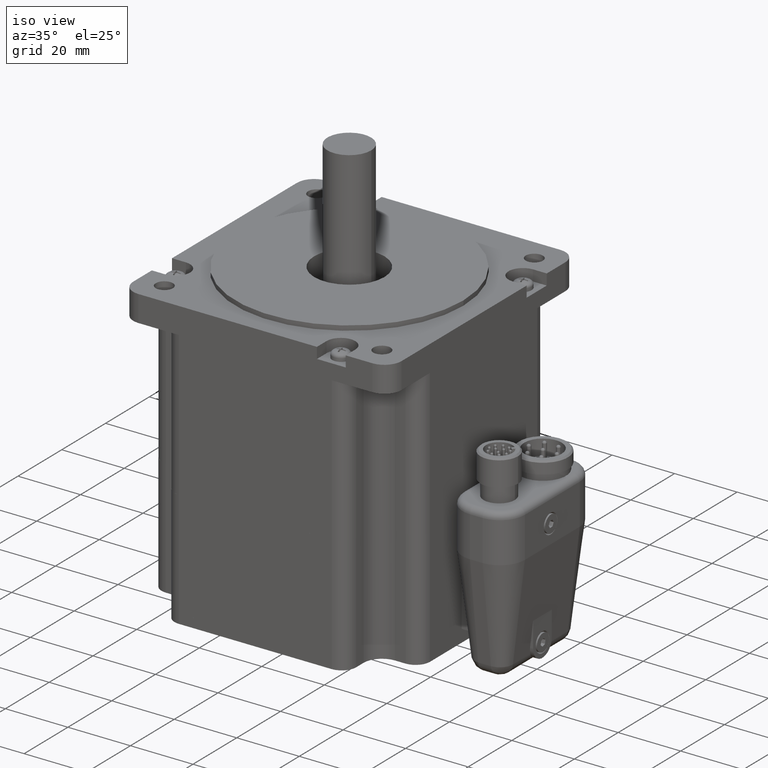
[diagram: clean part render]
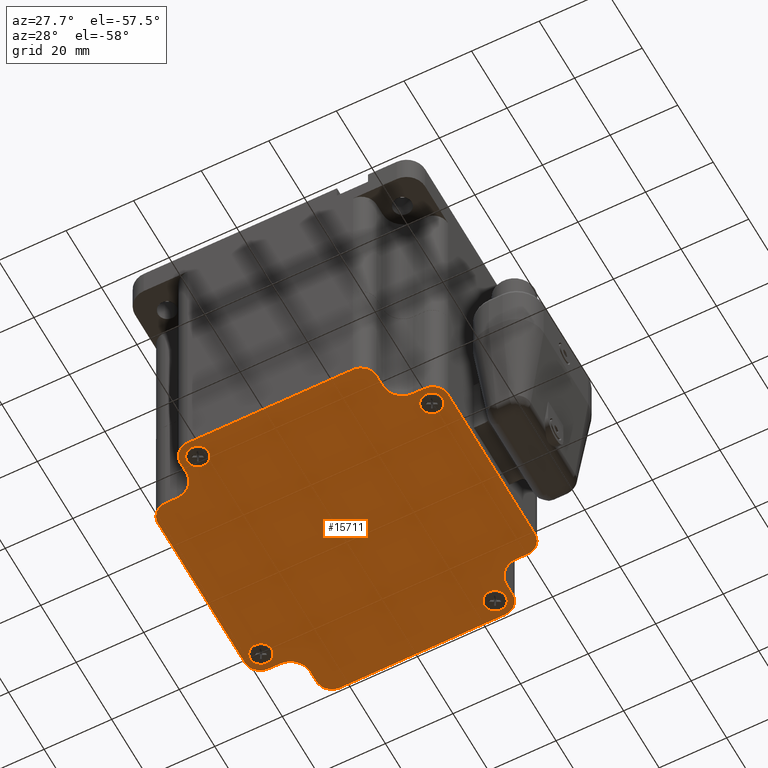
[diagram: tour spotlight — one face highlighted and labeled with its STEP entity id]
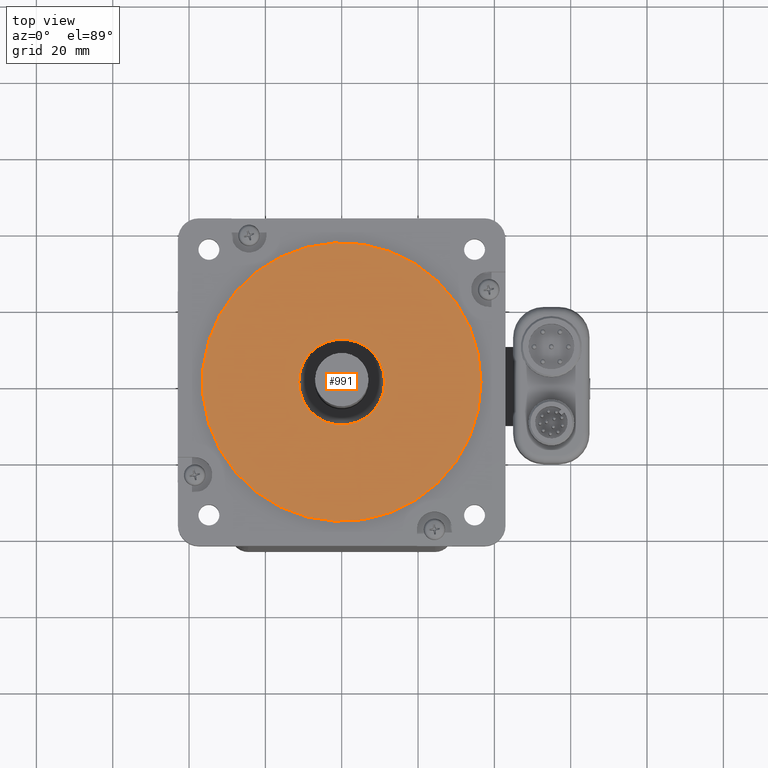
[diagram: tour spotlight — one face highlighted and labeled with its STEP entity id]
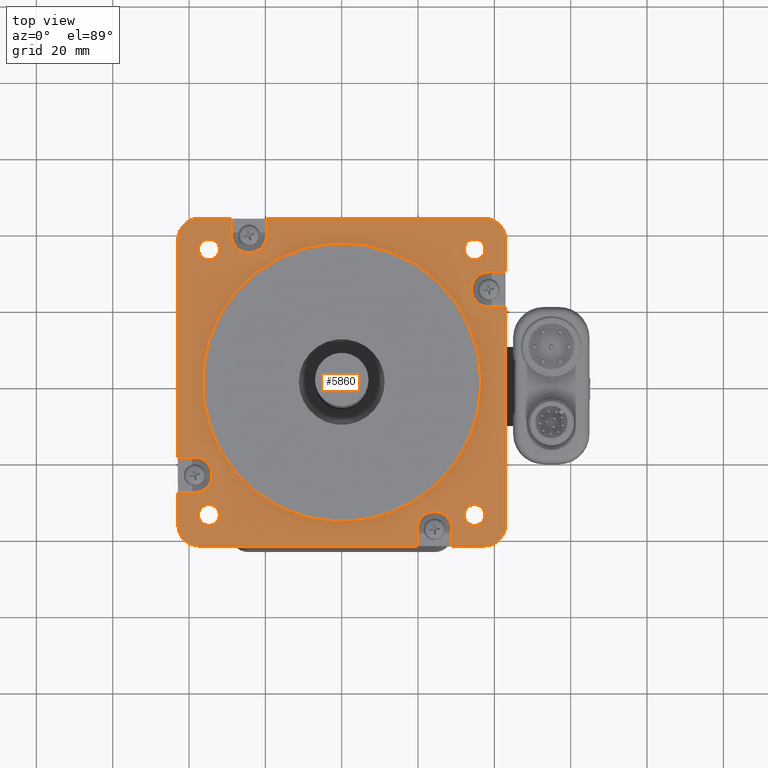
[diagram: tour spotlight — one face highlighted and labeled with its STEP entity id]
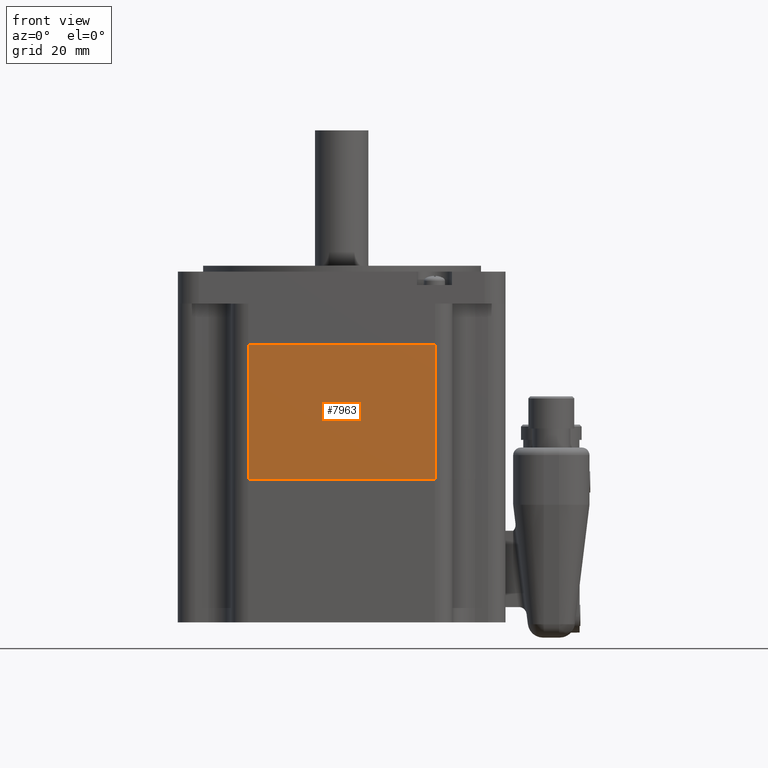
[diagram: tour spotlight — one face highlighted and labeled with its STEP entity id]
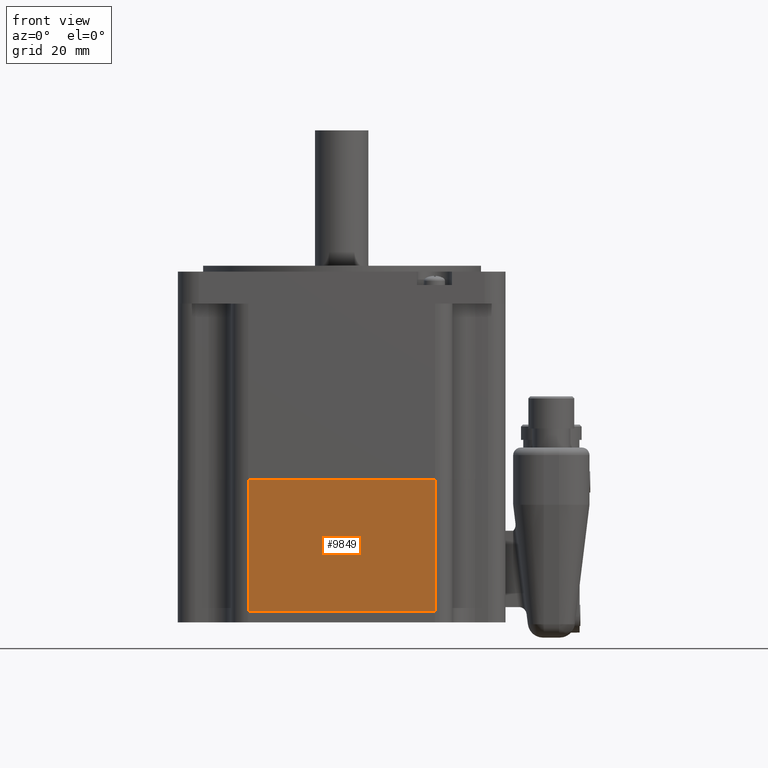
[diagram: tour spotlight — one face highlighted and labeled with its STEP entity id]
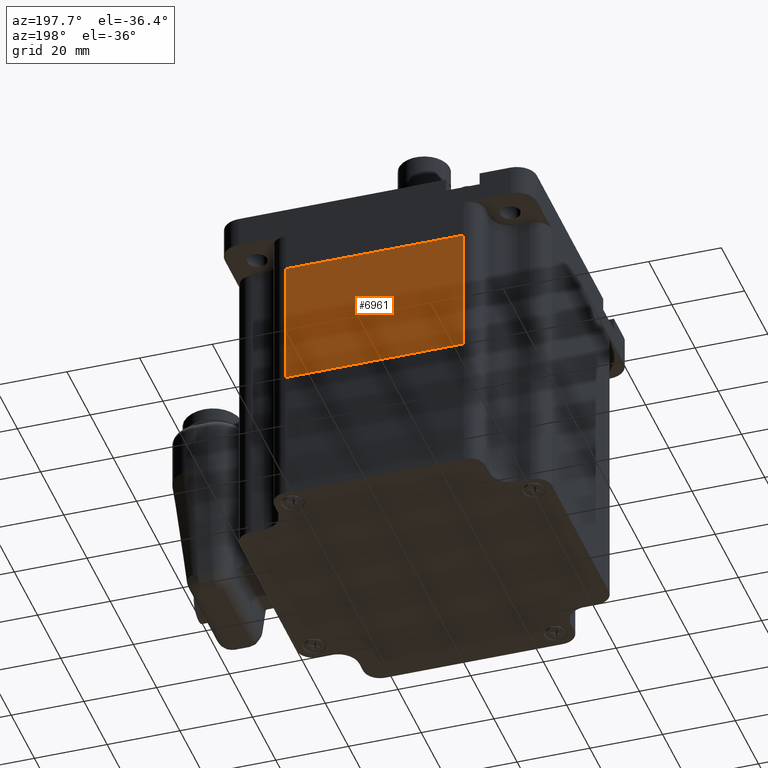
[diagram: tour spotlight — one face highlighted and labeled with its STEP entity id]
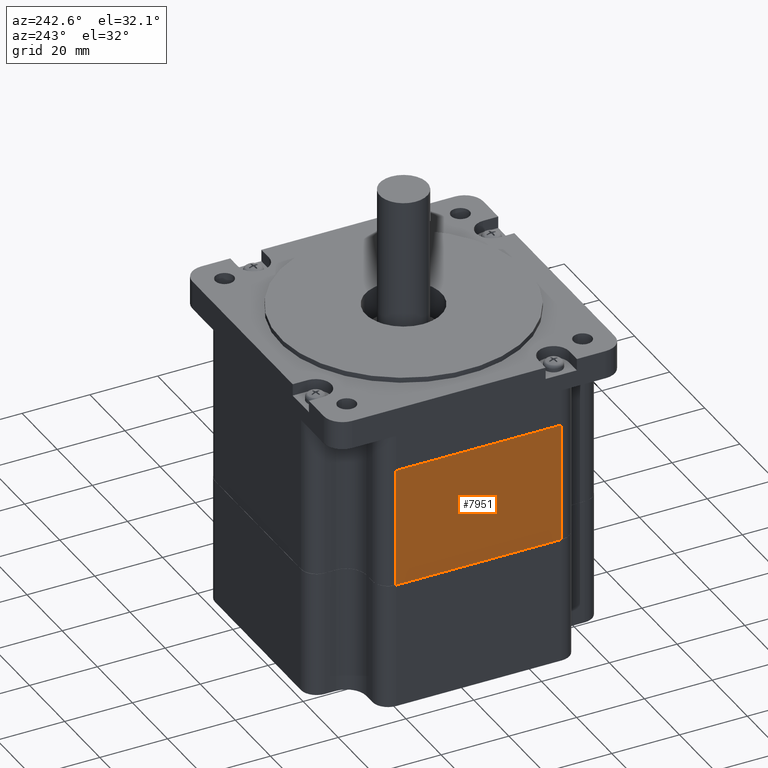
[diagram: tour spotlight — one face highlighted and labeled with its STEP entity id]
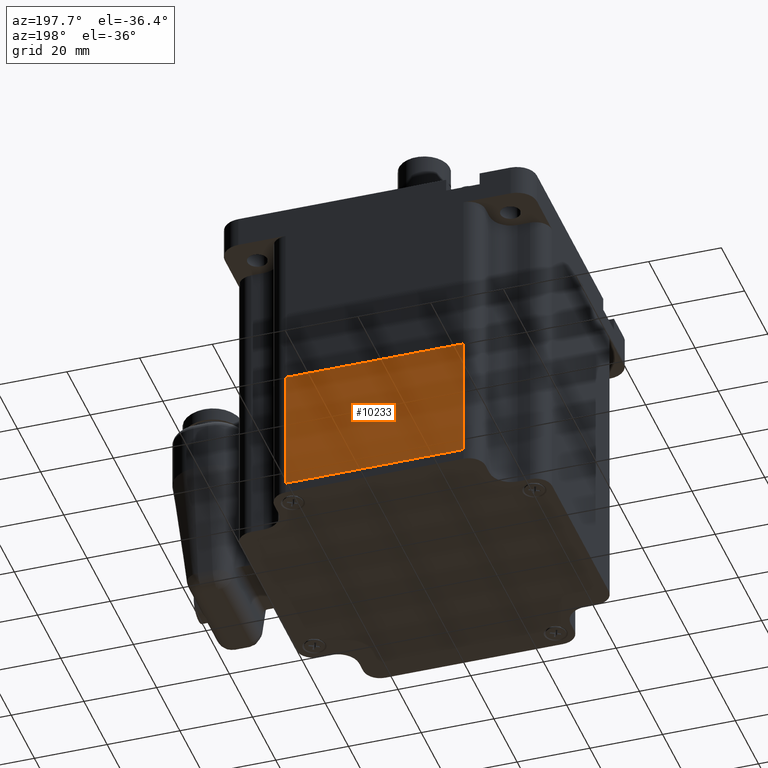
[diagram: tour spotlight — one face highlighted and labeled with its STEP entity id]
A machine part: a face-by-face anatomy tour. The part has 621 B-rep faces; the first image is the clean iso view, then the 8 largest visible faces are spotlighted one at a time (largest first), each with its STEP entity span.

Face 1 — auxiliary view, entity #15711. In plain terms, the highlighted planar face has unit normal (0, 0, -1).
Definition (entity closure, byte-faithful):
#15452=CARTESIAN_POINT('',(20.824999999999903,37.975000000000186,-74.299999999999912));
#15453=VERTEX_POINT('',#15452);
#15454=CARTESIAN_POINT('',(24.024999999999899,37.975000000000193,-74.299999999999912));
#15455=DIRECTION('',(0.0,0.0,-1.0));
#15456=DIRECTION('',(1.0,0.0,0.0));
#15457=AXIS2_PLACEMENT_3D('',#15454,#15455,#15456);
#15458=CIRCLE('',#15457,3.199999999999999);
#15459=EDGE_CURVE('',#15453,#15453,#15458,.T.);
#15464=CARTESIAN_POINT('',(-0.025000000000184,0.025000000000133,-74.299999999999912));
#15465=DIRECTION('',(0.0,0.0,-1.0));
#15466=DIRECTION('',(0.0,1.0,0.0));
#15467=AXIS2_PLACEMENT_3D('',#15464,#15465,#15466);
#15468=PLANE('',#15467);
#15469=CARTESIAN_POINT('',(34.924999999999564,29.075000000000117,-74.299999999999912));
#15470=VERTEX_POINT('',#15469);
#15471=CARTESIAN_POINT('',(38.324999999999648,29.075000000000124,-74.299999999999912));
#15472=VERTEX_POINT('',#15471);
#15473=CARTESIAN_POINT('',(34.924999999999557,29.07500000000012,-74.299999999999912));
#15474=DIRECTION('',(1.0,0.0,0.0));
#15475=VECTOR('',#15474,3.400000000000091);
#15476=LINE('',#15473,#15475);
#15477=EDGE_CURVE('',#15470,#15472,#15476,.T.);
#15478=ORIENTED_EDGE('',*,*,#15477,.T.);
#15479=CARTESIAN_POINT('',(42.924999999999578,24.475000000000225,-74.299999999999912));
#15480=VERTEX_POINT('',#15479);
#15481=CARTESIAN_POINT('',(38.324999999999662,24.475000000000215,-74.299999999999912));
#15482=DIRECTION('',(0.0,0.0,-1.0));
#15483=DIRECTION('',(0.0,-1.0,0.0));
#15484=AXIS2_PLACEMENT_3D('',#15481,#15482,#15483);
#15485=CIRCLE('',#15484,4.6);
#15486=EDGE_CURVE('',#15472,#15480,#15485,.T.);
#15487=ORIENTED_EDGE('',*,*,#15486,.T.);
#15488=CARTESIAN_POINT('',(42.92499999999967,-24.424999999999866,-74.299999999999912));
#15489=VERTEX_POINT('',#15488);
#15490=CARTESIAN_POINT('',(42.924999999999578,24.475000000000222,-74.299999999999912));
#15491=DIRECTION('',(0.0,-1.0,0.0));
#15492=VECTOR('',#15491,48.900000000000091);
#15493=LINE('',#15490,#15492);
#15494=EDGE_CURVE('',#15480,#15489,#15493,.T.);
#15495=ORIENTED_EDGE('',*,*,#15494,.T.);
#15496=CARTESIAN_POINT('',(38.324999999999761,-29.024999999999793,-74.299999999999912));
#15497=VERTEX_POINT('',#15496);
#15498=CARTESIAN_POINT('',(38.324999999999754,-24.42499999999988,-74.299999999999912));
#15499=DIRECTION('',(0.0,0.0,-1.0));
#15500=DIRECTION('',(-1.0,0.0,0.0));
#15501=AXIS2_PLACEMENT_3D('',#15498,#15499,#15500);
#15502=CIRCLE('',#15501,4.6);
#15503=EDGE_CURVE('',#15489,#15497,#15502,.T.);
#15504=ORIENTED_EDGE('',*,*,#15503,.T.);
#15505=CARTESIAN_POINT('',(34.924999999999677,-29.024999999999803,-74.299999999999912));
#15506=VERTEX_POINT('',#15505);
#15507=CARTESIAN_POINT('',(38.324999999999761,-29.024999999999793,-74.299999999999912));
#15508=DIRECTION('',(-1.0,0.0,0.0));
#15509=VECTOR('',#15508,3.400000000000084);
#15510=LINE('',#15507,#15509);
#15511=EDGE_CURVE('',#15497,#15506,#15510,.T.);
#15512=ORIENTED_EDGE('',*,*,#15511,.T.);
#15513=CARTESIAN_POINT('',(29.024999999999608,-34.924999999999898,-74.299999999999912));
#15514=VERTEX_POINT('',#15513);
#15515=CARTESIAN_POINT('',(34.924999999999692,-34.924999999999883,-74.299999999999912));
#15516=DIRECTION('',(0.0,0.0,1.0));
#15517=DIRECTION('',(-1.0,0.0,0.0));
#15518=AXIS2_PLACEMENT_3D('',#15515,#15516,#15517);
#15519=CIRCLE('',#15518,5.9);
#15520=EDGE_CURVE('',#15506,#15514,#15519,.T.);
#15521=ORIENTED_EDGE('',*,*,#15520,.T.);
#15522=CARTESIAN_POINT('',(29.025000000000563,-38.32499999999871,-74.299999999999912));
#15523=VERTEX_POINT('',#15522);
#15524=CARTESIAN_POINT('',(29.024999999999608,-34.924999999999898,-74.299999999999912));
#15525=DIRECTION('',(2.810823E-013,-1.0,0.0));
#15526=VECTOR('',#15525,3.399999999998805);
#15527=LINE('',#15524,#15526);
#15528=EDGE_CURVE('',#15514,#15523,#15527,.T.);
#15529=ORIENTED_EDGE('',*,*,#15528,.T.);
#15530=CARTESIAN_POINT('',(24.424999999999699,-42.925000000000004,-74.299999999999912));
#15531=VERTEX_POINT('',#15530);
#15532=CARTESIAN_POINT('',(24.424999999999688,-38.325000000000003,-74.299999999999912));
#15533=DIRECTION('',(0.0,0.0,-1.0));
#15534=DIRECTION('',(-1.0,-2.819672E-013,0.0));
#15535=AXIS2_PLACEMENT_3D('',#15532,#15533,#15534);
#15536=CIRCLE('',#15535,4.6);
#15537=EDGE_CURVE('',#15523,#15531,#15536,.T.);
#15538=ORIENTED_EDGE('',*,*,#15537,.T.);
#15539=CARTESIAN_POINT('',(-24.474999999999937,-42.924999999999997,-74.299999999999912));
#15540=VERTEX_POINT('',#15539);
#15541=CARTESIAN_POINT('',(24.424999999999695,-42.925000000000004,-74.299999999999912));
#15542=DIRECTION('',(-1.0,0.0,0.0));
#15543=VECTOR('',#15542,48.899999999999636);
#15544=LINE('',#15541,#15543);
#15545=EDGE_CURVE('',#15531,#15540,#15544,.T.);
#15546=ORIENTED_EDGE('',*,*,#15545,.T.);
#15547=CARTESIAN_POINT('',(-29.074999999999356,-38.325000000000102,-74.299999999999912));
#15548=VERTEX_POINT('',#15547);
#15549=CARTESIAN_POINT('',(-24.474999999999945,-38.325000000000585,-74.299999999999912));
#15550=DIRECTION('',(0.0,0.0,-1.0));
#15551=DIRECTION('',(0.0,1.0,0.0));
#15552=AXIS2_PLACEMENT_3D('',#15549,#15550,#15551);
#15553=CIRCLE('',#15552,4.599999999999417);
#15554=EDGE_CURVE('',#15540,#15548,#15553,.T.);
#15555=ORIENTED_EDGE('',*,*,#15554,.T.);
#15556=CARTESIAN_POINT('',(-29.075000000000312,-34.925000000000011,-74.299999999999912));
#15557=VERTEX_POINT('',#15556);
#15558=CARTESIAN_POINT('',(-29.074999999999356,-38.325000000000109,-74.299999999999912));
#15559=DIRECTION('',(-2.810823E-013,1.0,0.0));
#15560=VECTOR('',#15559,3.400000000000098);
#15561=LINE('',#15558,#15560);
#15562=EDGE_CURVE('',#15548,#15557,#15561,.T.);
#15563=ORIENTED_EDGE('',*,*,#15562,.T.);
#15564=CARTESIAN_POINT('',(-34.974999999999966,-29.024999999999931,-74.299999999999912));
#15565=VERTEX_POINT('',#15564);
#15566=CARTESIAN_POINT('',(-34.975000000000989,-34.925000000000608,-74.299999999999912));
#15567=DIRECTION('',(0.0,0.0,1.0));
#15568=DIRECTION('',(1.726270E-013,1.0,0.0));
#15569=AXIS2_PLACEMENT_3D('',#15566,#15567,#15568);
#15570=CIRCLE('',#15569,5.900000000000675);
#15571=EDGE_CURVE('',#15557,#15565,#15570,.T.);
#15572=ORIENTED_EDGE('',*,*,#15571,.T.);
#15573=CARTESIAN_POINT('',(-38.375000000000057,-29.024999999999942,-74.299999999999912));
#15574=VERTEX_POINT('',#15573);
#15575=CARTESIAN_POINT('',(-34.974999999999973,-29.024999999999935,-74.299999999999912));
#15576=DIRECTION('',(-1.0,0.0,0.0));
#15577=VECTOR('',#15576,3.400000000000077);
#15578=LINE('',#15575,#15577);
#15579=EDGE_CURVE('',#15565,#15574,#15578,.T.);
#15580=ORIENTED_EDGE('',*,*,#15579,.T.);
#15581=CARTESIAN_POINT('',(-42.974999999999987,-24.424999999998885,-74.299999999999912));
#15582=VERTEX_POINT('',#15581);
#15583=CARTESIAN_POINT('',(-38.375000000000057,-24.424999999998871,-74.299999999999912));
#15584=DIRECTION('',(0.0,0.0,-1.0));
#15585=DIRECTION('',(0.0,1.0,0.0));
#15586=AXIS2_PLACEMENT_3D('',#15583,#15584,#15585);
#15587=CIRCLE('',#15586,4.600000000001069);
#15588=EDGE_CURVE('',#15574,#15582,#15587,.T.);
#15589=ORIENTED_EDGE('',*,*,#15588,.T.);
#15590=CARTESIAN_POINT('',(-42.97500000000008,24.475000000000051,-74.299999999999912));
#15591=VERTEX_POINT('',#15590);
#15592=CARTESIAN_POINT('',(-42.974999999999973,-24.424999999998882,-74.299999999999912));
#15593=DIRECTION('',(0.0,1.0,0.0));
#15594=VECTOR('',#15593,48.899999999998933);
#15595=LINE('',#15592,#15594);
#15596=EDGE_CURVE('',#15582,#15591,#15595,.T.);
#15597=ORIENTED_EDGE('',*,*,#15596,.T.);
#15598=CARTESIAN_POINT('',(-38.375000000000185,29.074999999999982,-74.299999999999912));
#15599=VERTEX_POINT('',#15598);
#15600=CARTESIAN_POINT('',(-38.375000000000156,24.475000000000058,-74.299999999999912));
#15601=DIRECTION('',(0.0,0.0,-1.0));
#15602=DIRECTION('',(1.0,0.0,0.0));
#15603=AXIS2_PLACEMENT_3D('',#15600,#15601,#15602);
#15604=CIRCLE('',#15603,4.6);
#15605=EDGE_CURVE('',#15591,#15599,#15604,.T.);
#15606=ORIENTED_EDGE('',*,*,#15605,.T.);
#15607=CARTESIAN_POINT('',(-34.975000000000094,29.074999999999982,-74.299999999999912));
#15608=VERTEX_POINT('',#15607);
#15609=CARTESIAN_POINT('',(-38.375000000000171,29.074999999999985,-74.299999999999912));
#15610=DIRECTION('',(1.0,0.0,0.0));
#15611=VECTOR('',#15610,3.400000000000077);
#15612=LINE('',#15609,#15611);
#15613=EDGE_CURVE('',#15599,#15608,#15612,.T.);
#15614=ORIENTED_EDGE('',*,*,#15613,.T.);
#15615=CARTESIAN_POINT('',(-29.075000000000099,34.97500000000008,-74.299999999999912));
#15616=VERTEX_POINT('',#15615);
#15617=CARTESIAN_POINT('',(-34.975000000000101,34.97499999999998,-74.299999999999912));
#15618=DIRECTION('',(0.0,0.0,1.0));
#15619=DIRECTION('',(1.0,0.0,0.0));
#15620=AXIS2_PLACEMENT_3D('',#15617,#15618,#15619);
#15621=CIRCLE('',#15620,5.9);
#15622=EDGE_CURVE('',#15608,#15616,#15621,.T.);
#15623=ORIENTED_EDGE('',*,*,#15622,.T.);
#15624=CARTESIAN_POINT('',(-29.075000000000255,38.374999999999943,-74.299999999999912));
#15625=VERTEX_POINT('',#15624);
#15626=CARTESIAN_POINT('',(-29.075000000000099,34.97500000000008,-74.299999999999912));
#15627=DIRECTION('',(0.0,1.0,0.0));
#15628=VECTOR('',#15627,3.399999999999864);
#15629=LINE('',#15626,#15628);
#15630=EDGE_CURVE('',#15616,#15625,#15629,.T.);
#15631=ORIENTED_EDGE('',*,*,#15630,.T.);
#15632=CARTESIAN_POINT('',(-24.475000000000104,42.975000000000108,-74.299999999999912));
#15633=VERTEX_POINT('',#15632);
#15634=CARTESIAN_POINT('',(-24.475000000000094,38.374999999999957,-74.299999999999912));
#15635=DIRECTION('',(0.0,0.0,-1.0));
#15636=DIRECTION('',(1.0,0.0,0.0));
#15637=AXIS2_PLACEMENT_3D('',#15634,#15635,#15636);
#15638=CIRCLE('',#15637,4.6);
#15639=EDGE_CURVE('',#15625,#15633,#15638,.T.);
#15640=ORIENTED_EDGE('',*,*,#15639,.T.);
#15641=CARTESIAN_POINT('',(24.424999999999528,42.975000000000108,-74.299999999999912));
#15642=VERTEX_POINT('',#15641);
#15643=CARTESIAN_POINT('',(-24.475000000000108,42.975000000000108,-74.299999999999912));
#15644=DIRECTION('',(1.0,0.0,0.0));
#15645=VECTOR('',#15644,48.899999999999636);
#15646=LINE('',#15643,#15645);
#15647=EDGE_CURVE('',#15633,#15642,#15646,.T.);
#15648=ORIENTED_EDGE('',*,*,#15647,.T.);
#15649=CARTESIAN_POINT('',(29.024999999999544,38.375000000000064,-74.299999999999912));
#15650=VERTEX_POINT('',#15649);
#15651=CARTESIAN_POINT('',(24.424999999999528,38.37500000000005,-74.299999999999912));
#15652=DIRECTION('',(0.0,0.0,-1.0));
#15653=DIRECTION('',(0.0,-1.0,0.0));
#15654=AXIS2_PLACEMENT_3D('',#15651,#15652,#15653);
#15655=CIRCLE('',#15654,4.599999999999999);
#15656=EDGE_CURVE('',#15642,#15650,#15655,.T.);
#15657=ORIENTED_EDGE('',*,*,#15656,.T.);
#15658=CARTESIAN_POINT('',(29.024999999999551,34.975000000000193,-74.299999999999912));
#15659=VERTEX_POINT('',#15658);
#15660=CARTESIAN_POINT('',(29.024999999999544,38.375000000000057,-74.299999999999912));
#15661=DIRECTION('',(0.0,-1.0,0.0));
#15662=VECTOR('',#15661,3.399999999999864);
#15663=LINE('',#15660,#15662);
#15664=EDGE_CURVE('',#15650,#15659,#15663,.T.);
#15665=ORIENTED_EDGE('',*,*,#15664,.T.);
#15666=CARTESIAN_POINT('',(34.92499999999955,34.975000000000207,-74.299999999999912));
#15667=DIRECTION('',(0.0,0.0,1.0));
#15668=DIRECTION('',(0.0,-1.0,0.0));
#15669=AXIS2_PLACEMENT_3D('',#15666,#15667,#15668);
#15670=CIRCLE('',#15669,5.9);
#15671=EDGE_CURVE('',#15659,#15470,#15670,.T.);
#15672=ORIENTED_EDGE('',*,*,#15671,.T.);
#15673=EDGE_LOOP('',(#15478,#15487,#15495,#15504,#15512,#15521,#15529,#15538,#15546,#15555,#15563,#15572,#15580,#15589,#15597,#15606,#15614,#15623,#15631,#15640,#15648,#15657,#15665,#15672));
#15674=FACE_OUTER_BOUND('',#15673,.T.);
#15675=CARTESIAN_POINT('',(34.681856135419117,-24.024999999999803,-74.299999999999912));
#15676=VERTEX_POINT('',#15675);
#15677=CARTESIAN_POINT('',(37.88185613541912,-24.024999999999793,-74.299999999999912));
#15678=DIRECTION('',(0.0,0.0,-1.0));
#15679=DIRECTION('',(1.0,0.0,0.0));
#15680=AXIS2_PLACEMENT_3D('',#15677,#15678,#15679);
#15681=CIRCLE('',#15680,3.199999999999999);
#15682=EDGE_CURVE('',#15676,#15676,#15681,.T.);
#15683=ORIENTED_EDGE('',*,*,#15682,.F.);
#15684=EDGE_LOOP('',(#15683));
#15685=FACE_BOUND('',#15684,.T.);
#15686=CARTESIAN_POINT('',(-41.174999999999848,24.074999999999967,-74.299999999999912));
#15687=VERTEX_POINT('',#15686);
#15688=CARTESIAN_POINT('',(-37.974999999999845,24.074999999999974,-74.299999999999912));
#15689=DIRECTION('',(0.0,0.0,-1.0));
#15690=DIRECTION('',(1.0,0.0,0.0));
#15691=AXIS2_PLACEMENT_3D('',#15688,#15689,#15690);
#15692=CIRCLE('',#15691,3.199999999999999);
#15693=EDGE_CURVE('',#15687,#15687,#15692,.T.);
#15694=ORIENTED_EDGE('',*,*,#15693,.F.);
#15695=EDGE_LOOP('',(#15694));
#15696=FACE_BOUND('',#15695,.T.);
#15697=CARTESIAN_POINT('',(-27.275000000000084,-37.925000000000011,-74.299999999999912));
#15698=VERTEX_POINT('',#15697);
#15699=CARTESIAN_POINT('',(-24.075000000000088,-37.924999999999997,-74.299999999999912));
#15700=DIRECTION('',(0.0,0.0,-1.0));
#15701=DIRECTION('',(1.0,0.0,0.0));
#15702=AXIS2_PLACEMENT_3D('',#15699,#15700,#15701);
#15703=CIRCLE('',#15702,3.199999999999999);
#15704=EDGE_CURVE('',#15698,#15698,#15703,.T.);
#15705=ORIENTED_EDGE('',*,*,#15704,.F.);
#15706=EDGE_LOOP('',(#15705));
#15707=FACE_BOUND('',#15706,.T.);
#15708=ORIENTED_EDGE('',*,*,#15459,.F.);
#15709=EDGE_LOOP('',(#15708));
#15710=FACE_BOUND('',#15709,.T.);
#15711=ADVANCED_FACE('',(#15674,#15685,#15696,#15707,#15710),#15468,.T.);

Face 2 — top view, entity #991. In plain terms, the highlighted planar face has unit normal (0, 0, 1).
Definition (entity closure, byte-faithful):
#198=CARTESIAN_POINT('',(36.5,4.469961E-015,19.119999999999997));
#199=VERTEX_POINT('',#198);
#200=CARTESIAN_POINT('',(0.0,0.0,19.119999999999997));
#201=DIRECTION('',(0.0,0.0,1.0));
#202=DIRECTION('',(-1.0,0.0,0.0));
#203=AXIS2_PLACEMENT_3D('',#200,#201,#202);
#204=CIRCLE('',#203,36.5);
#205=EDGE_CURVE('',#199,#199,#204,.T.);
#972=CARTESIAN_POINT('',(-1.994313E-015,8.108442E-016,19.119999999999997));
#973=DIRECTION('',(0.0,0.0,1.0));
#974=DIRECTION('',(1.0,0.0,0.0));
#975=AXIS2_PLACEMENT_3D('',#972,#973,#974);
#976=PLANE('',#975);
#977=ORIENTED_EDGE('',*,*,#205,.T.);
#978=EDGE_LOOP('',(#977));
#979=FACE_OUTER_BOUND('',#978,.T.);
#980=CARTESIAN_POINT('',(11.25,1.377728E-015,19.120000000000001));
#981=VERTEX_POINT('',#980);
#982=CARTESIAN_POINT('',(0.0,0.0,19.119999999999997));
#983=DIRECTION('',(0.0,0.0,1.0));
#984=DIRECTION('',(-1.0,0.0,0.0));
#985=AXIS2_PLACEMENT_3D('',#982,#983,#984);
#986=CIRCLE('',#985,11.25);
#987=EDGE_CURVE('',#981,#981,#986,.T.);
#988=ORIENTED_EDGE('',*,*,#987,.F.);
#989=EDGE_LOOP('',(#988));
#990=FACE_BOUND('',#989,.T.);
#991=ADVANCED_FACE('',(#979,#990),#976,.T.);

Face 3 — top view, entity #5860. In plain terms, the highlighted planar face has unit normal (0, 0, 1).
Definition (entity closure, byte-faithful):
#86=CARTESIAN_POINT('',(37.550000000000004,-34.799999999999997,17.600000000000001));
#87=VERTEX_POINT('',#86);
#88=CARTESIAN_POINT('',(34.800000000000004,-34.799999999999997,17.600000000000001));
#89=DIRECTION('',(0.0,0.0,-1.0));
#90=DIRECTION('',(-1.0,0.0,0.0));
#91=AXIS2_PLACEMENT_3D('',#88,#89,#90);
#92=CIRCLE('',#91,2.75);
#93=EDGE_CURVE('',#87,#87,#92,.T.);
#114=CARTESIAN_POINT('',(-32.049999999999997,34.799999999999997,17.600000000000001));
#115=VERTEX_POINT('',#114);
#116=CARTESIAN_POINT('',(-34.799999999999997,34.799999999999997,17.600000000000001));
#117=DIRECTION('',(0.0,0.0,-1.0));
#118=DIRECTION('',(-1.0,0.0,0.0));
#119=AXIS2_PLACEMENT_3D('',#116,#117,#118);
#120=CIRCLE('',#119,2.75);
#121=EDGE_CURVE('',#115,#115,#120,.T.);
#142=CARTESIAN_POINT('',(37.550000000000004,34.799999999999997,17.600000000000001));
#143=VERTEX_POINT('',#142);
#144=CARTESIAN_POINT('',(34.800000000000004,34.799999999999997,17.600000000000001));
#145=DIRECTION('',(0.0,0.0,-1.0));
#146=DIRECTION('',(-1.0,0.0,0.0));
#147=AXIS2_PLACEMENT_3D('',#144,#145,#146);
#148=CIRCLE('',#147,2.75);
#149=EDGE_CURVE('',#143,#143,#148,.T.);
#170=CARTESIAN_POINT('',(-32.049999999999997,-34.799999999999997,17.600000000000001));
#171=VERTEX_POINT('',#170);
#172=CARTESIAN_POINT('',(-34.799999999999997,-34.799999999999997,17.600000000000001));
#173=DIRECTION('',(0.0,0.0,-1.0));
#174=DIRECTION('',(-1.0,0.0,0.0));
#175=AXIS2_PLACEMENT_3D('',#172,#173,#174);
#176=CIRCLE('',#175,2.75);
#177=EDGE_CURVE('',#171,#171,#176,.T.);
#187=CARTESIAN_POINT('',(36.5,4.469961E-015,17.599999999999998));
#188=VERTEX_POINT('',#187);
#189=CARTESIAN_POINT('',(0.0,0.0,17.599999999999994));
#190=DIRECTION('',(0.0,0.0,1.0));
#191=DIRECTION('',(-1.0,0.0,0.0));
#192=AXIS2_PLACEMENT_3D('',#189,#190,#191);
#193=CIRCLE('',#192,36.5);
#194=EDGE_CURVE('',#188,#188,#193,.T.);
#1117=CARTESIAN_POINT('',(42.924999999999997,37.42499999999999,17.600000000000001));
#1118=VERTEX_POINT('',#1117);
#1125=CARTESIAN_POINT('',(42.924999999999997,28.900000000000013,17.600000000000001));
#1126=VERTEX_POINT('',#1125);
#1127=CARTESIAN_POINT('',(42.924999999999997,37.42499999999999,17.600000000000001));
#1128=DIRECTION('',(0.0,-1.0,0.0));
#1129=VECTOR('',#1128,8.524999999999977);
#1130=LINE('',#1127,#1129);
#1131=EDGE_CURVE('',#1118,#1126,#1130,.T.);
#1149=CARTESIAN_POINT('',(42.924999999999997,19.700000000000006,17.600000000000001));
#1150=VERTEX_POINT('',#1149);
#1157=CARTESIAN_POINT('',(42.924999999999997,-37.424999999999997,17.600000000000001));
#1158=VERTEX_POINT('',#1157);
#1159=CARTESIAN_POINT('',(42.924999999999997,19.700000000000006,17.600000000000001));
#1160=DIRECTION('',(0.0,-1.0,0.0));
#1161=VECTOR('',#1160,57.125);
#1162=LINE('',#1159,#1161);
#1163=EDGE_CURVE('',#1150,#1158,#1162,.T.);
#1183=CARTESIAN_POINT('',(37.424999999999997,42.924999999999983,17.600000000000001));
#1184=VERTEX_POINT('',#1183);
#1191=CARTESIAN_POINT('',(37.424999999999997,37.42499999999999,17.600000000000001));
#1192=DIRECTION('',(0.0,0.0,-1.0));
#1193=DIRECTION('',(0.707106781186548,0.707106781186547,0.0));
#1194=AXIS2_PLACEMENT_3D('',#1191,#1192,#1193);
#1195=CIRCLE('',#1194,5.5);
#1196=EDGE_CURVE('',#1184,#1118,#1195,.T.);
#1217=CARTESIAN_POINT('',(-37.424999999999997,42.924999999999983,17.600000000000001));
#1218=VERTEX_POINT('',#1217);
#1225=CARTESIAN_POINT('',(-28.900000000000002,42.924999999999997,17.600000000000001));
#1226=VERTEX_POINT('',#1225);
#1227=CARTESIAN_POINT('',(-37.424999999999997,42.924999999999983,17.600000000000001));
#1228=DIRECTION('',(1.0,0.0,0.0));
#1229=VECTOR('',#1228,8.524999999999995);
#1230=LINE('',#1227,#1229);
#1231=EDGE_CURVE('',#1218,#1226,#1230,.T.);
#1249=CARTESIAN_POINT('',(-19.700000000000006,42.924999999999997,17.600000000000001));
#1250=VERTEX_POINT('',#1249);
#1257=CARTESIAN_POINT('',(-19.700000000000006,42.924999999999983,17.600000000000001));
#1258=DIRECTION('',(1.0,0.0,0.0));
#1259=VECTOR('',#1258,57.125);
#1260=LINE('',#1257,#1259);
#1261=EDGE_CURVE('',#1250,#1184,#1260,.T.);
#1273=CARTESIAN_POINT('',(-42.924999999999997,37.42499999999999,17.600000000000001));
#1274=VERTEX_POINT('',#1273);
#1281=CARTESIAN_POINT('',(-37.424999999999997,37.42499999999999,17.600000000000001));
#1282=DIRECTION('',(0.0,0.0,-1.0));
#1283=DIRECTION('',(-0.707106781186547,0.707106781186547,0.0));
#1284=AXIS2_PLACEMENT_3D('',#1281,#1282,#1283);
#1285=CIRCLE('',#1284,5.500000000000002);
#1286=EDGE_CURVE('',#1274,#1218,#1285,.T.);
#1302=CARTESIAN_POINT('',(-42.924999999999997,-37.424999999999997,17.600000000000001));
#1303=VERTEX_POINT('',#1302);
#1310=CARTESIAN_POINT('',(-42.924999999999997,-28.900000000000002,17.600000000000001));
#1311=VERTEX_POINT('',#1310);
#1312=CARTESIAN_POINT('',(-42.924999999999997,-37.424999999999997,17.600000000000001));
#1313=DIRECTION('',(0.0,1.0,0.0));
#1314=VECTOR('',#1313,8.524999999999995);
#1315=LINE('',#1312,#1314);
#1316=EDGE_CURVE('',#1303,#1311,#1315,.T.);
#1334=CARTESIAN_POINT('',(-42.924999999999997,-19.700000000000006,17.600000000000001));
#1335=VERTEX_POINT('',#1334);
#1342=CARTESIAN_POINT('',(-42.924999999999997,-19.700000000000006,17.600000000000001));
#1343=DIRECTION('',(0.0,1.0,0.0));
#1344=VECTOR('',#1343,57.125);
#1345=LINE('',#1342,#1344);
#1346=EDGE_CURVE('',#1335,#1274,#1345,.T.);
#1358=CARTESIAN_POINT('',(-37.424999999999997,-42.924999999999997,17.600000000000001));
#1359=VERTEX_POINT('',#1358);
#1366=CARTESIAN_POINT('',(-37.424999999999997,-37.424999999999997,17.600000000000001));
#1367=DIRECTION('',(0.0,0.0,-1.0));
#1368=DIRECTION('',(-0.707106781186547,-0.707106781186548,0.0));
#1369=AXIS2_PLACEMENT_3D('',#1366,#1367,#1368);
#1370=CIRCLE('',#1369,5.499999999999998);
#1371=EDGE_CURVE('',#1359,#1303,#1370,.T.);
#1387=CARTESIAN_POINT('',(37.424999999999997,-42.924999999999997,17.600000000000001));
#1388=VERTEX_POINT('',#1387);
#1395=CARTESIAN_POINT('',(28.900000000000013,-42.924999999999997,17.600000000000001));
#1396=VERTEX_POINT('',#1395);
#1397=CARTESIAN_POINT('',(37.424999999999997,-42.924999999999997,17.600000000000001));
#1398=DIRECTION('',(-1.0,0.0,0.0));
#1399=VECTOR('',#1398,8.524999999999984);
#1400=LINE('',#1397,#1399);
#1401=EDGE_CURVE('',#1388,#1396,#1400,.T.);
#1419=CARTESIAN_POINT('',(19.700000000000006,-42.924999999999997,17.600000000000001));
#1420=VERTEX_POINT('',#1419);
#1427=CARTESIAN_POINT('',(19.700000000000006,-42.924999999999997,17.600000000000001));
#1428=DIRECTION('',(-1.0,0.0,0.0));
#1429=VECTOR('',#1428,57.125);
#1430=LINE('',#1427,#1429);
#1431=EDGE_CURVE('',#1420,#1359,#1430,.T.);
#1444=CARTESIAN_POINT('',(37.424999999999997,-37.424999999999997,17.600000000000001));
#1445=DIRECTION('',(0.0,0.0,-1.0));
#1446=DIRECTION('',(0.707106781186547,-0.707106781186547,0.0));
#1447=AXIS2_PLACEMENT_3D('',#1444,#1445,#1446);
#1448=CIRCLE('',#1447,5.500000000000002);
#1449=EDGE_CURVE('',#1158,#1388,#1448,.T.);
#5505=CARTESIAN_POINT('',(-38.524999999999999,-28.899999999999988,17.600000000000001));
#5506=VERTEX_POINT('',#5505);
#5507=CARTESIAN_POINT('',(-38.524999999999999,-28.899999999999988,17.600000000000001));
#5508=DIRECTION('',(-1.0,0.0,0.0));
#5509=VECTOR('',#5508,4.399999999999999);
#5510=LINE('',#5507,#5509);
#5511=EDGE_CURVE('',#5506,#1311,#5510,.T.);
#5537=CARTESIAN_POINT('',(-38.524999999999999,-19.700000000000006,17.600000000000001));
#5538=VERTEX_POINT('',#5537);
#5539=CARTESIAN_POINT('',(-38.524999999999999,-24.299999999999994,17.600000000000001));
#5540=DIRECTION('',(0.0,0.0,-1.0));
#5541=DIRECTION('',(0.0,-1.0,0.0));
#5542=AXIS2_PLACEMENT_3D('',#5539,#5540,#5541);
#5543=CIRCLE('',#5542,4.6);
#5544=EDGE_CURVE('',#5538,#5506,#5543,.T.);
#5567=CARTESIAN_POINT('',(-42.924999999999997,-19.700000000000006,17.600000000000001));
#5568=DIRECTION('',(1.0,0.0,0.0));
#5569=VECTOR('',#5568,4.399999999999992);
#5570=LINE('',#5567,#5569);
#5571=EDGE_CURVE('',#1335,#5538,#5570,.T.);
#5606=CARTESIAN_POINT('',(-28.899999999999988,38.524999999999999,17.600000000000001));
#5607=VERTEX_POINT('',#5606);
#5608=CARTESIAN_POINT('',(-28.899999999999988,38.524999999999999,17.600000000000001));
#5609=DIRECTION('',(0.0,1.0,0.0));
#5610=VECTOR('',#5609,4.399999999999999);
#5611=LINE('',#5608,#5610);
#5612=EDGE_CURVE('',#5607,#1226,#5611,.T.);
#5638=CARTESIAN_POINT('',(-19.700000000000006,38.524999999999999,17.600000000000001));
#5639=VERTEX_POINT('',#5638);
#5640=CARTESIAN_POINT('',(-24.299999999999994,38.524999999999999,17.600000000000001));
#5641=DIRECTION('',(0.0,0.0,-1.0));
#5642=DIRECTION('',(-1.0,0.0,0.0));
#5643=AXIS2_PLACEMENT_3D('',#5640,#5641,#5642);
#5644=CIRCLE('',#5643,4.6);
#5645=EDGE_CURVE('',#5639,#5607,#5644,.T.);
#5668=CARTESIAN_POINT('',(-19.700000000000006,42.924999999999997,17.600000000000001));
#5669=DIRECTION('',(0.0,-1.0,0.0));
#5670=VECTOR('',#5669,4.399999999999992);
#5671=LINE('',#5668,#5670);
#5672=EDGE_CURVE('',#1250,#5639,#5671,.T.);
#5707=CARTESIAN_POINT('',(38.524999999999999,28.900000000000002,17.600000000000001));
#5708=VERTEX_POINT('',#5707);
#5709=CARTESIAN_POINT('',(38.524999999999999,28.899999999999988,17.600000000000001));
#5710=DIRECTION('',(1.0,0.0,0.0));
#5711=VECTOR('',#5710,4.399999999999999);
#5712=LINE('',#5709,#5711);
#5713=EDGE_CURVE('',#5708,#1126,#5712,.T.);
#5739=CARTESIAN_POINT('',(38.524999999999999,19.700000000000006,17.600000000000001));
#5740=VERTEX_POINT('',#5739);
#5741=CARTESIAN_POINT('',(38.524999999999999,24.300000000000001,17.600000000000001));
#5742=DIRECTION('',(0.0,0.0,-1.0));
#5743=DIRECTION('',(0.0,1.0,0.0));
#5744=AXIS2_PLACEMENT_3D('',#5741,#5742,#5743);
#5745=CIRCLE('',#5744,4.6);
#5746=EDGE_CURVE('',#5740,#5708,#5745,.T.);
#5769=CARTESIAN_POINT('',(42.924999999999997,19.700000000000006,17.600000000000001));
#5770=DIRECTION('',(-1.0,0.0,0.0));
#5771=VECTOR('',#5770,4.399999999999992);
#5772=LINE('',#5769,#5771);
#5773=EDGE_CURVE('',#1150,#5740,#5772,.T.);
#5794=CARTESIAN_POINT('',(-4.440892E-015,-2.220446E-015,17.600000000000001));
#5795=DIRECTION('',(0.0,0.0,1.0));
#5796=DIRECTION('',(1.0,0.0,0.0));
#5797=AXIS2_PLACEMENT_3D('',#5794,#5795,#5796);
#5798=PLANE('',#5797);
#5799=ORIENTED_EDGE('',*,*,#5571,.T.);
#5800=ORIENTED_EDGE('',*,*,#5544,.T.);
#5801=ORIENTED_EDGE('',*,*,#5511,.T.);
#5802=ORIENTED_EDGE('',*,*,#1316,.F.);
#5803=ORIENTED_EDGE('',*,*,#1371,.F.);
#5804=ORIENTED_EDGE('',*,*,#1431,.F.);
#5805=CARTESIAN_POINT('',(19.700000000000006,-38.524999999999999,17.600000000000001));
#5806=VERTEX_POINT('',#5805);
#5807=CARTESIAN_POINT('',(19.700000000000006,-42.924999999999997,17.600000000000001));
#5808=DIRECTION('',(0.0,1.0,0.0));
#5809=VECTOR('',#5808,4.399999999999992);
#5810=LINE('',#5807,#5809);
#5811=EDGE_CURVE('',#1420,#5806,#5810,.T.);
#5812=ORIENTED_EDGE('',*,*,#5811,.T.);
#5813=CARTESIAN_POINT('',(28.900000000000002,-38.524999999999999,17.600000000000001));
#5814=VERTEX_POINT('',#5813);
#5815=CARTESIAN_POINT('',(24.300000000000001,-38.524999999999999,17.600000000000001));
#5816=DIRECTION('',(0.0,0.0,-1.0));
#5817=DIRECTION('',(1.0,0.0,0.0));
#5818=AXIS2_PLACEMENT_3D('',#5815,#5816,#5817);
#5819=CIRCLE('',#5818,4.6);
#5820=EDGE_CURVE('',#5806,#5814,#5819,.T.);
#5821=ORIENTED_EDGE('',*,*,#5820,.T.);
#5822=CARTESIAN_POINT('',(28.900000000000002,-38.524999999999999,17.600000000000001));
#5823=DIRECTION('',(0.0,-1.0,0.0));
#5824=VECTOR('',#5823,4.399999999999999);
#5825=LINE('',#5822,#5824);
#5826=EDGE_CURVE('',#5814,#1396,#5825,.T.);
#5827=ORIENTED_EDGE('',*,*,#5826,.T.);
#5828=ORIENTED_EDGE('',*,*,#1401,.F.);
#5829=ORIENTED_EDGE('',*,*,#1449,.F.);
#5830=ORIENTED_EDGE('',*,*,#1163,.F.);
#5831=ORIENTED_EDGE('',*,*,#5773,.T.);
#5832=ORIENTED_EDGE('',*,*,#5746,.T.);
#5833=ORIENTED_EDGE('',*,*,#5713,.T.);
#5834=ORIENTED_EDGE('',*,*,#1131,.F.);
#5835=ORIENTED_EDGE('',*,*,#1196,.F.);
#5836=ORIENTED_EDGE('',*,*,#1261,.F.);
#5837=ORIENTED_EDGE('',*,*,#5672,.T.);
#5838=ORIENTED_EDGE('',*,*,#5645,.T.);
#5839=ORIENTED_EDGE('',*,*,#5612,.T.);
#5840=ORIENTED_EDGE('',*,*,#1231,.F.);
#5841=ORIENTED_EDGE('',*,*,#1286,.F.);
#5842=ORIENTED_EDGE('',*,*,#1346,.F.);
#5843=EDGE_LOOP('',(#5799,#5800,#5801,#5802,#5803,#5804,#5812,#5821,#5827,#5828,#5829,#5830,#5831,#5832,#5833,#5834,#5835,#5836,#5837,#5838,#5839,#5840,#5841,#5842));
#5844=FACE_OUTER_BOUND('',#5843,.T.);
#5845=ORIENTED_EDGE('',*,*,#93,.T.);
#5846=EDGE_LOOP('',(#5845));
#5847=FACE_BOUND('',#5846,.T.);
#5848=ORIENTED_EDGE('',*,*,#121,.T.);
#5849=EDGE_LOOP('',(#5848));
#5850=FACE_BOUND('',#5849,.T.);
#5851=ORIENTED_EDGE('',*,*,#149,.T.);
#5852=EDGE_LOOP('',(#5851));
#5853=FACE_BOUND('',#5852,.T.);
#5854=ORIENTED_EDGE('',*,*,#177,.T.);
#5855=EDGE_LOOP('',(#5854));
#5856=FACE_BOUND('',#5855,.T.);
#5857=ORIENTED_EDGE('',*,*,#194,.F.);
#5858=EDGE_LOOP('',(#5857));
#5859=FACE_BOUND('',#5858,.T.);
#5860=ADVANCED_FACE('',(#5844,#5847,#5850,#5853,#5856,#5859),#5798,.T.);

Face 4 — front view, entity #7963. In plain terms, the highlighted planar face has unit normal (0, -1, 0).
Definition (entity closure, byte-faithful):
#6650=CARTESIAN_POINT('',(24.450000000000017,-42.925000000000004,-36.899999999999892));
#6651=VERTEX_POINT('',#6650);
#6659=CARTESIAN_POINT('',(-24.449999999999971,-42.925000000000004,-36.899999999999892));
#6660=VERTEX_POINT('',#6659);
#6661=CARTESIAN_POINT('',(-24.449999999999974,-42.925000000000004,-36.899999999999906));
#6662=DIRECTION('',(1.0,0.0,0.0));
#6663=VECTOR('',#6662,48.899999999999991);
#6664=LINE('',#6661,#6663);
#6665=EDGE_CURVE('',#6660,#6651,#6664,.T.);
#7681=CARTESIAN_POINT('',(24.449999999999985,-42.925000000000004,-1.499999999999947));
#7682=VERTEX_POINT('',#7681);
#7689=CARTESIAN_POINT('',(24.45000000000001,-42.925000000000004,-1.499999999999947));
#7690=DIRECTION('',(0.0,0.0,-1.0));
#7691=VECTOR('',#7690,35.399999999999949);
#7692=LINE('',#7689,#7691);
#7693=EDGE_CURVE('',#7682,#6651,#7692,.T.);
#7704=CARTESIAN_POINT('',(-24.45000000000001,-42.925000000000004,-1.499999999999947));
#7705=VERTEX_POINT('',#7704);
#7712=CARTESIAN_POINT('',(24.449999999999985,-42.925000000000004,-1.499999999999947));
#7713=DIRECTION('',(-1.0,0.0,0.0));
#7714=VECTOR('',#7713,48.900000000000006);
#7715=LINE('',#7712,#7714);
#7716=EDGE_CURVE('',#7682,#7705,#7715,.T.);
#7728=CARTESIAN_POINT('',(-24.449999999999967,-42.925000000000004,-36.899999999999892));
#7729=DIRECTION('',(0.0,0.0,1.0));
#7730=VECTOR('',#7729,35.399999999999949);
#7731=LINE('',#7728,#7730);
#7732=EDGE_CURVE('',#6660,#7705,#7731,.T.);
#7952=CARTESIAN_POINT('',(29.050000000000011,-42.925000000000004,-94.899999999999977));
#7953=DIRECTION('',(0.0,-1.0,0.0));
#7954=DIRECTION('',(0.0,0.0,-1.0));
#7955=AXIS2_PLACEMENT_3D('',#7952,#7953,#7954);
#7956=PLANE('',#7955);
#7957=ORIENTED_EDGE('',*,*,#6665,.T.);
#7958=ORIENTED_EDGE('',*,*,#7693,.F.);
#7959=ORIENTED_EDGE('',*,*,#7716,.T.);
#7960=ORIENTED_EDGE('',*,*,#7732,.F.);
#7961=EDGE_LOOP('',(#7957,#7958,#7959,#7960));
#7962=FACE_OUTER_BOUND('',#7961,.T.);
#7963=ADVANCED_FACE('',(#7962),#7956,.T.);

Face 5 — front view, entity #9849. In plain terms, the highlighted planar face has unit normal (0, -1, 0).
Definition (entity closure, byte-faithful):
#9791=CARTESIAN_POINT('',(24.42499999999999,-42.925000000000004,-71.299999999999912));
#9792=VERTEX_POINT('',#9791);
#9801=CARTESIAN_POINT('',(24.42499999999999,-42.925000000000004,-36.899999999999913));
#9802=VERTEX_POINT('',#9801);
#9810=CARTESIAN_POINT('',(24.42499999999999,-42.925000000000004,-71.299999999999912));
#9811=DIRECTION('',(0.0,0.0,1.0));
#9812=VECTOR('',#9811,34.399999999999999);
#9813=LINE('',#9810,#9812);
#9814=EDGE_CURVE('',#9792,#9802,#9813,.T.);
#9819=CARTESIAN_POINT('',(-24.475000000000016,-42.925000000000004,-71.299999999999912));
#9820=DIRECTION('',(0.0,-1.0,0.0));
#9821=DIRECTION('',(1.0,0.0,0.0));
#9822=AXIS2_PLACEMENT_3D('',#9819,#9820,#9821);
#9823=PLANE('',#9822);
#9824=CARTESIAN_POINT('',(-24.475000000000016,-42.925000000000004,-71.299999999999912));
#9825=VERTEX_POINT('',#9824);
#9826=CARTESIAN_POINT('',(24.42499999999999,-42.925000000000004,-71.299999999999912));
#9827=DIRECTION('',(-1.0,0.0,0.0));
#9828=VECTOR('',#9827,48.900000000000006);
#9829=LINE('',#9826,#9828);
#9830=EDGE_CURVE('',#9792,#9825,#9829,.T.);
#9831=ORIENTED_EDGE('',*,*,#9830,.F.);
#9832=ORIENTED_EDGE('',*,*,#9814,.T.);
#9833=CARTESIAN_POINT('',(-24.475000000000016,-42.925000000000004,-36.899999999999913));
#9834=VERTEX_POINT('',#9833);
#9835=CARTESIAN_POINT('',(-24.475000000000016,-42.925000000000004,-36.899999999999913));
#9836=DIRECTION('',(1.0,0.0,0.0));
#9837=VECTOR('',#9836,48.900000000000006);
#9838=LINE('',#9835,#9837);
#9839=EDGE_CURVE('',#9834,#9802,#9838,.T.);
#9840=ORIENTED_EDGE('',*,*,#9839,.F.);
#9841=CARTESIAN_POINT('',(-24.475000000000016,-42.925000000000004,-71.299999999999912));
#9842=DIRECTION('',(0.0,0.0,1.0));
#9843=VECTOR('',#9842,34.399999999999999);
#9844=LINE('',#9841,#9843);
#9845=EDGE_CURVE('',#9825,#9834,#9844,.T.);
#9846=ORIENTED_EDGE('',*,*,#9845,.F.);
#9847=EDGE_LOOP('',(#9831,#9832,#9840,#9846));
#9848=FACE_OUTER_BOUND('',#9847,.T.);
#9849=ADVANCED_FACE('',(#9848),#9823,.T.);

Face 6 — auxiliary view, entity #6961. In plain terms, the highlighted planar face has unit normal (0, 1, 0).
Definition (entity closure, byte-faithful):
#6548=CARTESIAN_POINT('',(-24.450000000000006,42.924999999999983,-36.899999999999892));
#6549=VERTEX_POINT('',#6548);
#6557=CARTESIAN_POINT('',(24.450000000000017,42.924999999999983,-36.899999999999892));
#6558=VERTEX_POINT('',#6557);
#6559=CARTESIAN_POINT('',(24.45000000000001,42.924999999999983,-36.899999999999906));
#6560=DIRECTION('',(-1.0,0.0,0.0));
#6561=VECTOR('',#6560,48.90000000000002);
#6562=LINE('',#6559,#6561);
#6563=EDGE_CURVE('',#6558,#6549,#6562,.T.);
#6903=CARTESIAN_POINT('',(24.45000000000001,42.924999999999976,-1.499999999999947));
#6904=VERTEX_POINT('',#6903);
#6905=CARTESIAN_POINT('',(24.450000000000017,42.924999999999983,-36.899999999999892));
#6906=DIRECTION('',(0.0,0.0,1.0));
#6907=VECTOR('',#6906,35.399999999999949);
#6908=LINE('',#6905,#6907);
#6909=EDGE_CURVE('',#6558,#6904,#6908,.T.);
#6938=CARTESIAN_POINT('',(-29.050000000000011,42.924999999999983,-94.899999999999977));
#6939=DIRECTION('',(0.0,1.0,0.0));
#6940=DIRECTION('',(0.0,0.0,1.0));
#6941=AXIS2_PLACEMENT_3D('',#6938,#6939,#6940);
#6942=PLANE('',#6941);
#6943=ORIENTED_EDGE('',*,*,#6563,.T.);
#6944=CARTESIAN_POINT('',(-24.449999999999985,42.924999999999976,-1.499999999999947));
#6945=VERTEX_POINT('',#6944);
#6946=CARTESIAN_POINT('',(-24.45000000000001,42.924999999999983,-1.499999999999947));
#6947=DIRECTION('',(0.0,0.0,-1.0));
#6948=VECTOR('',#6947,35.399999999999949);
#6949=LINE('',#6946,#6948);
#6950=EDGE_CURVE('',#6945,#6549,#6949,.T.);
#6951=ORIENTED_EDGE('',*,*,#6950,.F.);
#6952=CARTESIAN_POINT('',(-24.449999999999985,42.924999999999976,-1.499999999999947));
#6953=DIRECTION('',(1.0,0.0,0.0));
#6954=VECTOR('',#6953,48.900000000000006);
#6955=LINE('',#6952,#6954);
#6956=EDGE_CURVE('',#6945,#6904,#6955,.T.);
#6957=ORIENTED_EDGE('',*,*,#6956,.T.);
#6958=ORIENTED_EDGE('',*,*,#6909,.F.);
#6959=EDGE_LOOP('',(#6943,#6951,#6957,#6958));
#6960=FACE_OUTER_BOUND('',#6959,.T.);
#6961=ADVANCED_FACE('',(#6960),#6942,.T.);

Face 7 — auxiliary view, entity #7951. In plain terms, the highlighted planar face has unit normal (-1, 0, 0).
Definition (entity closure, byte-faithful):
#6701=CARTESIAN_POINT('',(-42.924999999999983,-24.450000000000021,-36.899999999999892));
#6702=VERTEX_POINT('',#6701);
#6710=CARTESIAN_POINT('',(-42.924999999999983,24.450000000000003,-36.899999999999892));
#6711=VERTEX_POINT('',#6710);
#6712=CARTESIAN_POINT('',(-42.924999999999997,24.450000000000003,-36.899999999999906));
#6713=DIRECTION('',(0.0,-1.0,0.0));
#6714=VECTOR('',#6713,48.90000000000002);
#6715=LINE('',#6712,#6714);
#6716=EDGE_CURVE('',#6711,#6702,#6715,.T.);
#7098=CARTESIAN_POINT('',(-42.924999999999997,24.450000000000003,-1.499999999999947));
#7099=VERTEX_POINT('',#7098);
#7100=CARTESIAN_POINT('',(-42.924999999999997,24.450000000000003,-36.899999999999892));
#7101=DIRECTION('',(0.0,0.0,1.0));
#7102=VECTOR('',#7101,35.399999999999949);
#7103=LINE('',#7100,#7102);
#7104=EDGE_CURVE('',#6711,#7099,#7103,.T.);
#7846=CARTESIAN_POINT('',(-42.924999999999997,-24.449999999999996,-1.499999999999947));
#7847=VERTEX_POINT('',#7846);
#7854=CARTESIAN_POINT('',(-42.924999999999997,-24.450000000000024,-1.499999999999947));
#7855=DIRECTION('',(0.0,0.0,-1.0));
#7856=VECTOR('',#7855,35.399999999999949);
#7857=LINE('',#7854,#7856);
#7858=EDGE_CURVE('',#7847,#6702,#7857,.T.);
#7870=CARTESIAN_POINT('',(-42.924999999999997,-24.449999999999996,-1.499999999999947));
#7871=DIRECTION('',(0.0,1.0,0.0));
#7872=VECTOR('',#7871,48.900000000000006);
#7873=LINE('',#7870,#7872);
#7874=EDGE_CURVE('',#7847,#7099,#7873,.T.);
#7940=CARTESIAN_POINT('',(-42.924999999999997,-29.050000000000018,-94.899999999999977));
#7941=DIRECTION('',(-1.0,0.0,0.0));
#7942=DIRECTION('',(0.0,0.0,1.0));
#7943=AXIS2_PLACEMENT_3D('',#7940,#7941,#7942);
#7944=PLANE('',#7943);
#7945=ORIENTED_EDGE('',*,*,#6716,.T.);
#7946=ORIENTED_EDGE('',*,*,#7858,.F.);
#7947=ORIENTED_EDGE('',*,*,#7874,.T.);
#7948=ORIENTED_EDGE('',*,*,#7104,.F.);
#7949=EDGE_LOOP('',(#7945,#7946,#7947,#7948));
#7950=FACE_OUTER_BOUND('',#7949,.T.);
#7951=ADVANCED_FACE('',(#7950),#7944,.T.);

Face 8 — auxiliary view, entity #10233. In plain terms, the highlighted planar face has unit normal (0, 1, 0).
Definition (entity closure, byte-faithful):
#10175=CARTESIAN_POINT('',(-24.475000000000016,42.975000000000009,-71.299999999999912));
#10176=VERTEX_POINT('',#10175);
#10185=CARTESIAN_POINT('',(-24.475000000000016,42.975000000000009,-36.899999999999913));
#10186=VERTEX_POINT('',#10185);
#10194=CARTESIAN_POINT('',(-24.475000000000016,42.975000000000009,-71.299999999999912));
#10195=DIRECTION('',(0.0,0.0,1.0));
#10196=VECTOR('',#10195,34.399999999999999);
#10197=LINE('',#10194,#10196);
#10198=EDGE_CURVE('',#10176,#10186,#10197,.T.);
#10203=CARTESIAN_POINT('',(24.42499999999999,42.975000000000023,-71.299999999999912));
#10204=DIRECTION('',(0.0,1.0,0.0));
#10205=DIRECTION('',(-1.0,0.0,0.0));
#10206=AXIS2_PLACEMENT_3D('',#10203,#10204,#10205);
#10207=PLANE('',#10206);
#10208=CARTESIAN_POINT('',(24.42499999999999,42.975000000000023,-71.299999999999912));
#10209=VERTEX_POINT('',#10208);
#10210=CARTESIAN_POINT('',(-24.475000000000016,42.975000000000009,-71.299999999999912));
#10211=DIRECTION('',(1.0,0.0,0.0));
#10212=VECTOR('',#10211,48.900000000000006);
#10213=LINE('',#10210,#10212);
#10214=EDGE_CURVE('',#10176,#10209,#10213,.T.);
#10215=ORIENTED_EDGE('',*,*,#10214,.F.);
#10216=ORIENTED_EDGE('',*,*,#10198,.T.);
#10217=CARTESIAN_POINT('',(24.42499999999999,42.975000000000023,-36.899999999999913));
#10218=VERTEX_POINT('',#10217);
#10219=CARTESIAN_POINT('',(24.42499999999999,42.975000000000016,-36.899999999999913));
#10220=DIRECTION('',(-1.0,0.0,0.0));
#10221=VECTOR('',#10220,48.900000000000006);
#10222=LINE('',#10219,#10221);
#10223=EDGE_CURVE('',#10218,#10186,#10222,.T.);
#10224=ORIENTED_EDGE('',*,*,#10223,.F.);
#10225=CARTESIAN_POINT('',(24.42499999999999,42.975000000000023,-71.299999999999912));
#10226=DIRECTION('',(0.0,0.0,1.0));
#10227=VECTOR('',#10226,34.399999999999999);
#10228=LINE('',#10225,#10227);
#10229=EDGE_CURVE('',#10209,#10218,#10228,.T.);
#10230=ORIENTED_EDGE('',*,*,#10229,.F.);
#10231=EDGE_LOOP('',(#10215,#10216,#10224,#10230));
#10232=FACE_OUTER_BOUND('',#10231,.T.);
#10233=ADVANCED_FACE('',(#10232),#10207,.T.);